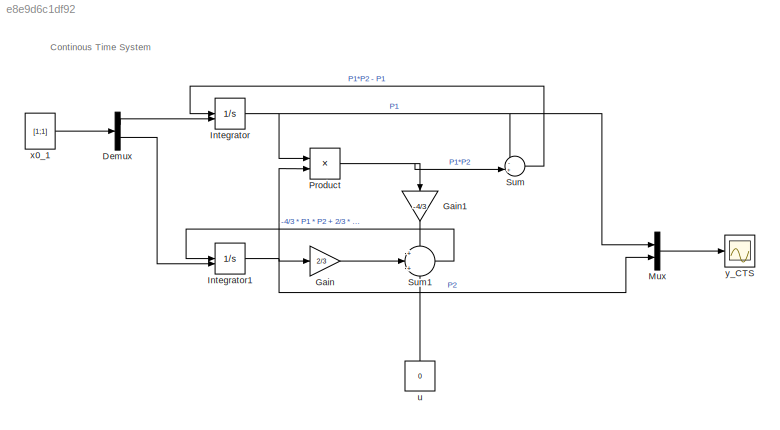
MODEL slx_e8e9d6c1df92
KIND model
CONFIG AbsTol = auto
CONFIG EnableMultiTasking = off
CONFIG FixedStep = 0.01
CONFIG MaxStep = auto
CONFIG MinStep = auto
CONFIG RelTol = 1e-3
CONFIG SampleTimeConstraint = Unconstrained
CONFIG SolverName = FixedStepAuto
CONFIG StartTime = 0
CONFIG StopTime = 100
BLOCK [Demux] Demux
  Outputs = 2
BLOCK [Gain] Gain
  Gain = 2/3
BLOCK [Gain] Gain1
  Gain = -4/3
  NameLocation = left
BLOCK [Integrator] Integrator
  InitialConditionSource = external
BLOCK [Integrator] Integrator1
  InitialConditionSource = external
BLOCK [Mux] Mux
  DisplayOption = bar
  Inputs = 2
BLOCK [Product] Product
BLOCK [Sum] Sum
  Inputs = -+|
BLOCK [Sum] Sum1
  Inputs = +|+|+
BLOCK [Constant] u
  Value = 0
BLOCK [Constant] x0_1
  NameLocation = left
  Value = [1;1]
BLOCK [Scope] y_CTS
  Floating = off
  NameLocation = top
  NumInputPorts = 1
  ScopeSpecificationString = Simulink.scopes.TimeScopeBlockCfg('CurrentConfiguration', extmgr.ConfigurationSet(extmgr.Configuration('Core','General UI',true),extmgr.Configuration('Core','Source UI',true),extmgr.Configuration('Sources','WiredSimulink',true,'DataLoggingVariableName','ScopeData1'),extmgr.Configuration('Visuals','Time Domain',true,'SerializedDisplays',{struct('MinYLimReal','0.00575','MaxYLimReal','1.98013','YLabe...<+1563ch>
ANNOTATION (root): Continous Time System
LINE Demux:1 -> Integrator:2
LINE Demux:2 -> Integrator1:2
LINE Gain1:1 -> Sum1:1
LINE Gain:1 -> Sum1:2
NET Integrator1:1 -> Gain:1, Mux:2, Product:2
NET Integrator:1 -> Mux:1, Product:1, Sum:1
LINE Mux:1 -> y_CTS:1
NET Product:1 -> Gain1:1, Sum:2
LINE Sum1:1 -> Integrator1:1
LINE Sum:1 -> Integrator:1
LINE u:1 -> Sum1:3
LINE x0_1:1 -> Demux:1
note: NET lines group one-source signal fan-out (src -> all destinations, sorted); 1:1 wires keep LINE
